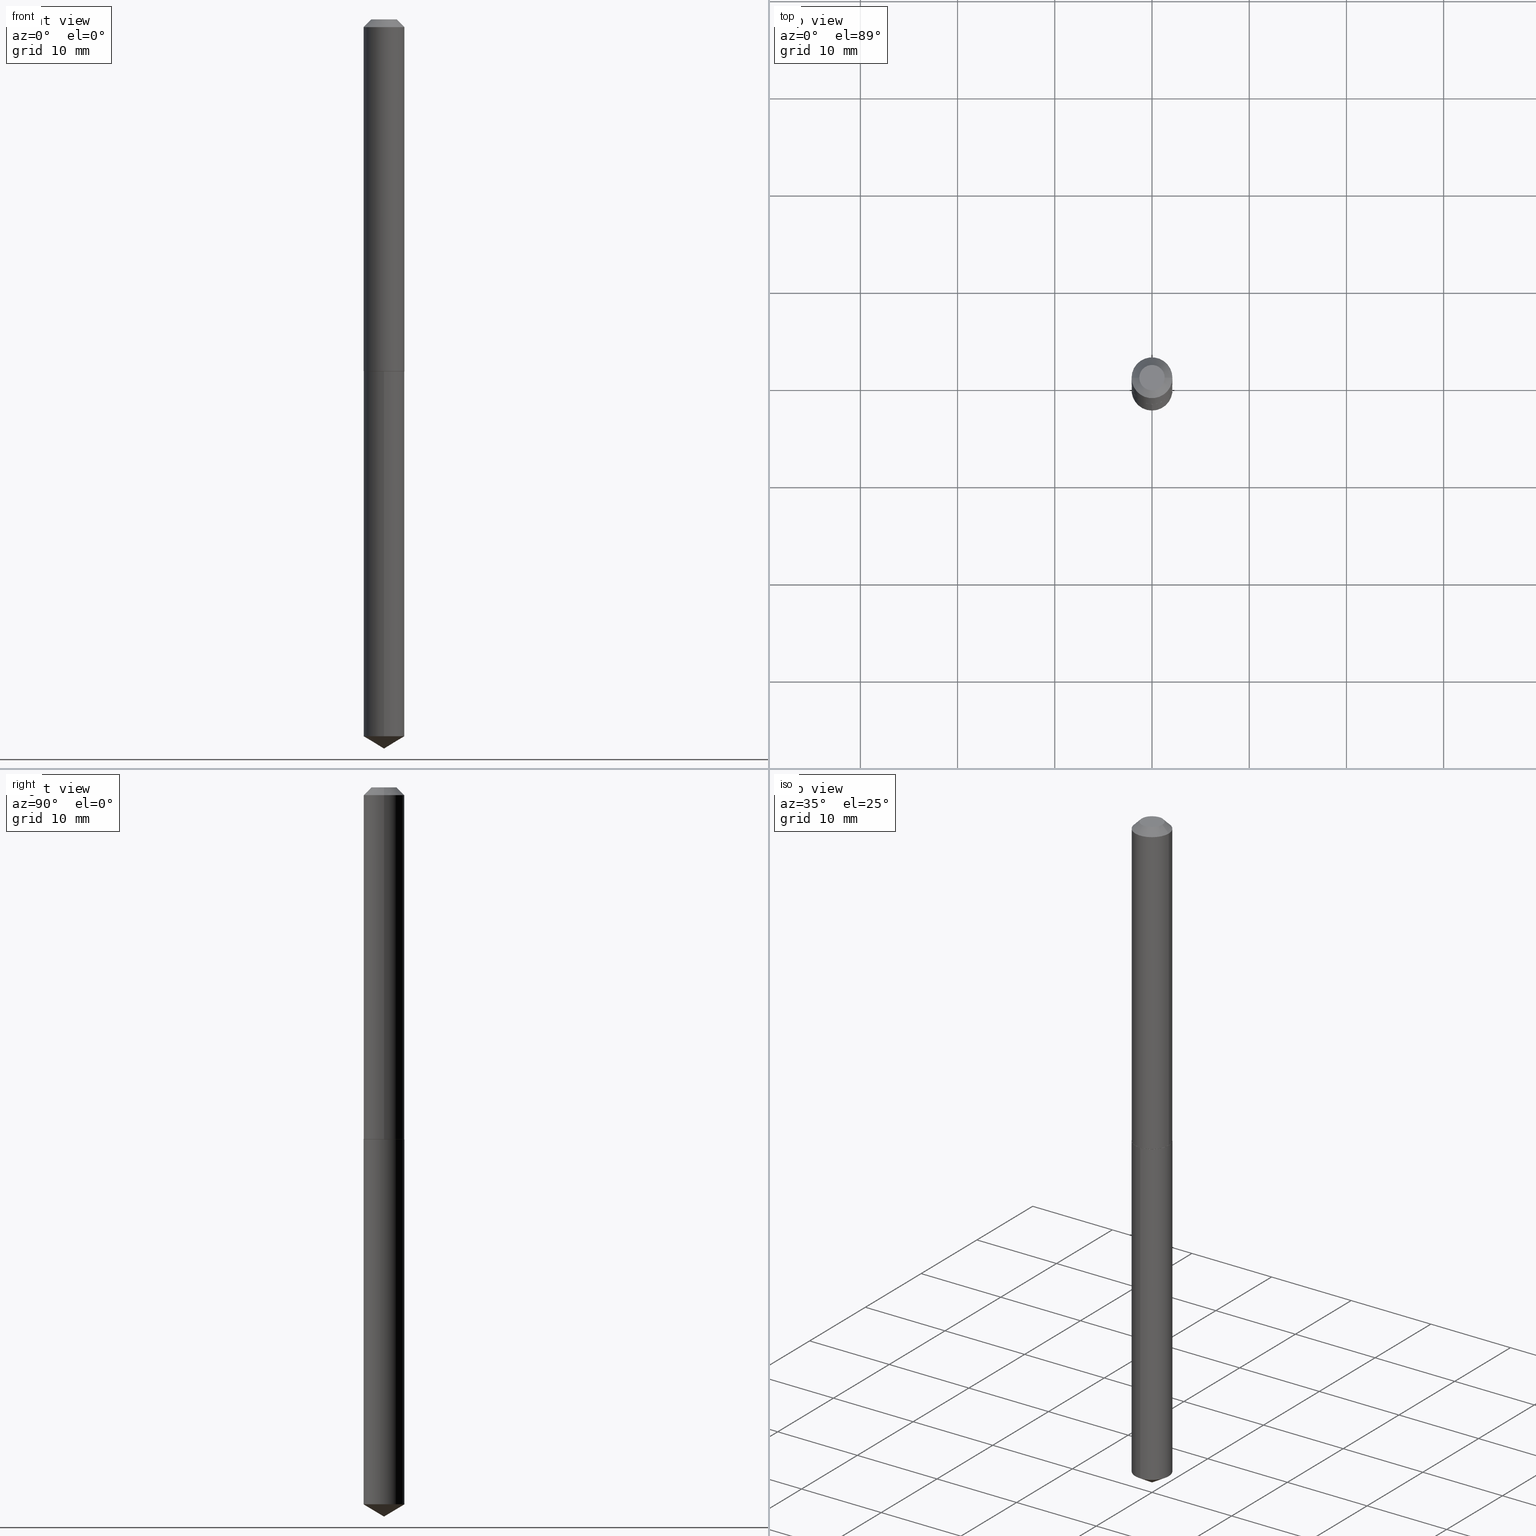
[diagram: canonical four-view strip — front | top / right | iso, engineering-drawing reading convention]
A machine part, canonical four-view strip (front | top / right | iso — engineering-drawing reading convention). The complete STEP part file that produces these views, byte-faithful:
ISO-10303-21;
HEADER;
FILE_DESCRIPTION (( 'STEP AP203' ),
    '1' );
FILE_NAME ('68319.STEP',
    '2024-04-23T13:04:47',
    ( '' ),
    ( '' ),
    'SwSTEP 2.0',
    'SolidWorks 2023',
    '' );
FILE_SCHEMA (( 'CONFIG_CONTROL_DESIGN' ));
ENDSEC;

DATA;
#1 = CARTESIAN_POINT ( 'NONE',  ( 3.485526689455674098E-29, -4.976408352253134499E-15, -1.425299999999999789 ) ) ;
#2 = ADVANCED_FACE ( 'NONE', ( #378 ), #289, .T. ) ;
#3 = DATE_AND_TIME ( #312, #188 ) ;
#4 = ORIENTED_EDGE ( 'NONE', *, *, #171, .T. ) ;
#5 = DATE_AND_TIME ( #34, #48 ) ;
#6 = ORIENTED_EDGE ( 'NONE', *, *, #72, .F. ) ;
#7 = CONICAL_SURFACE ( 'NONE', #279, 0.08269999999999999574, 0.7853981633974450594 ) ;
#8 = DATE_AND_TIME ( #336, #294 ) ;
#9 = ORIENTED_EDGE ( 'NONE', *, *, #180, .T. ) ;
#10 = LINE ( 'NONE', #101, #250 ) ;
#11 = ORIENTED_EDGE ( 'NONE', *, *, #129, .F. ) ;
#12 = VECTOR ( 'NONE', #116, 39.37007874015748143 ) ;
#13 = APPROVAL_DATE_TIME ( #287, #369 ) ;
#14 = AXIS2_PLACEMENT_3D ( 'NONE', #320, #73, #196 ) ;
#15 = ADVANCED_FACE ( 'NONE', ( #49 ), #346, .T. ) ;
#16 = DIRECTION ( 'NONE',  ( -6.982962677686265133E-15, -1.000000000000000000, 3.468864327941516906E-15 ) ) ;
#17 = LINE ( 'NONE', #176, #130 ) ;
#18 = FACE_OUTER_BOUND ( 'NONE', #28, .T. ) ;
#19 = CC_DESIGN_DATE_AND_TIME_ASSIGNMENT ( #8, #64, ( #120 ) ) ;
#20 = DIRECTION ( 'NONE',  ( -2.445410719042540052E-29, 3.491564522937458728E-15, 1.000000000000000000 ) ) ;
#21 = DIRECTION ( 'NONE',  ( -6.982962677686265922E-15, -1.000000000000000000, 3.303322846026920670E-15 ) ) ;
#22 = DIRECTION ( 'NONE',  ( -2.438088387897960049E-29, 3.491481338843145188E-15, 1.000000000000000000 ) ) ;
#23 = ORIENTED_EDGE ( 'NONE', *, *, #174, .T. ) ;
#24 = EDGE_CURVE ( 'NONE', #247, #37, #104, .T. ) ;
#25 = CARTESIAN_POINT ( 'NONE',  ( 7.642090019328600035E-31, -1.091087918388489897E-16, -0.03125000000000020123 ) ) ;
#26 = DIRECTION ( 'NONE',  ( -6.982962677686265133E-15, -1.000000000000000000, 3.468864327941516906E-15 ) ) ;
#27 = LINE ( 'NONE', #297, #86 ) ;
#28 = EDGE_LOOP ( 'NONE', ( #45, #6 ) ) ;
#29 = DIRECTION ( 'NONE',  ( 0.000000000000000000, 0.000000000000000000, 1.000000000000000000 ) ) ;
#30 = EDGE_CURVE ( 'NONE', #70, #146, #10, .T. ) ;
#31 = ORIENTED_EDGE ( 'NONE', *, *, #311, .T. ) ;
#32 = ORIENTED_EDGE ( 'NONE', *, *, #164, .F. ) ;
#33 = VERTEX_POINT ( 'NONE', #228 ) ;
#34 = CALENDAR_DATE ( 2024, 23, 4 ) ;
#35 = DIRECTION ( 'NONE',  ( -2.445410719042540052E-29, 3.491564522937458728E-15, 1.000000000000000000 ) ) ;
#36 = DIRECTION ( 'NONE',  ( -2.445468806185136597E-29, 3.491481338843145583E-15, 1.000000000000000000 ) ) ;
#37 = VERTEX_POINT ( 'NONE', #127 ) ;
#38 = LINE ( 'NONE', #66, #162 ) ;
#39 = VERTEX_POINT ( 'NONE', #254 ) ;
#40 = APPLICATION_CONTEXT ( 'configuration controlled 3d designs of mechanical parts and assemblies' ) ;
#41 = CARTESIAN_POINT ( 'NONE',  ( -0.05144999999999999574, 4.138278256863818177E-16, 2.449293598267681157E-19 ) ) ;
#42 =( GEOMETRIC_REPRESENTATION_CONTEXT ( 3 ) GLOBAL_UNCERTAINTY_ASSIGNED_CONTEXT ( ( #261 ) ) GLOBAL_UNIT_ASSIGNED_CONTEXT ( ( #361, #152, #307 ) ) REPRESENTATION_CONTEXT ( 'NONE', 'WORKASPACE' ) );
#43 = CIRCLE ( 'NONE', #47, 0.08220000000000014795 ) ;
#44 = EDGE_LOOP ( 'NONE', ( #343, #23, #9, #306 ) ) ;
#45 = ORIENTED_EDGE ( 'NONE', *, *, #311, .F. ) ;
#46 = CARTESIAN_POINT ( 'NONE',  ( 7.642090019328600035E-31, -1.091087918388489897E-16, -0.03125000000000020123 ) ) ;
#47 = AXIS2_PLACEMENT_3D ( 'NONE', #386, #78, #326 ) ;
#48 = LOCAL_TIME ( 9, 4, 47.00000000000000000, #277 ) ;
#49 = FACE_OUTER_BOUND ( 'NONE', #44, .T. ) ;
#50 = DIRECTION ( 'NONE',  ( 2.445410719042539772E-29, -3.491564522937458728E-15, -1.000000000000000000 ) ) ;
#51 = CC_DESIGN_PERSON_AND_ORGANIZATION_ASSIGNMENT ( #160, #341, ( #75 ) ) ;
#52 = LINE ( 'NONE', #383, #212 ) ;
#53 = CARTESIAN_POINT ( 'NONE',  ( 3.485526689455674098E-29, -4.976408352253134499E-15, -1.425299999999999789 ) ) ;
#54 = CARTESIAN_POINT ( 'NONE',  ( -5.989671091818665474E-48, 8.551662891793965739E-34, 2.449293598294711584E-19 ) ) ;
#55 = VERTEX_POINT ( 'NONE', #41 ) ;
#56 = AXIS2_PLACEMENT_3D ( 'NONE', #264, #179, #232 ) ;
#57 = LOCAL_TIME ( 9, 4, 47.00000000000000000, #223 ) ;
#58 = DIRECTION ( 'NONE',  ( 2.445468806185136597E-29, -3.491481338843145583E-15, -1.000000000000000000 ) ) ;
#59 = CARTESIAN_POINT ( 'NONE',  ( 3.484303955052581857E-29, -4.974662611583712996E-15, -1.424799999999999844 ) ) ;
#60 = DIRECTION ( 'NONE',  ( -6.982962677686265922E-15, -1.000000000000000000, 3.303322846026920670E-15 ) ) ;
#61 = EDGE_CURVE ( 'NONE', #55, #216, #230, .T. ) ;
#62 = COORDINATED_UNIVERSAL_TIME_OFFSET ( 5, 0, .BEHIND. ) ;
#63 = AXIS2_PLACEMENT_3D ( 'NONE', #248, #220, #159 ) ;
#64 = DATE_TIME_ROLE ( 'creation_date' ) ;
#65 = PERSON_AND_ORGANIZATION ( #273, #193 ) ;
#66 = CARTESIAN_POINT ( 'NONE',  ( 0.08270000000000007900, -5.774910134446548770E-16, 4.032598193583242774E-30 ) ) ;
#67 = DIRECTION ( 'NONE',  ( 1.000000000000000000, -6.982962677686267499E-15, 0.000000000000000000 ) ) ;
#68 = CONICAL_SURFACE ( 'NONE', #56, 0.08269999999999999574, 0.7853981633974450594 ) ;
#69 = CC_DESIGN_APPROVAL ( #108, ( #120 ) ) ;
#70 = VERTEX_POINT ( 'NONE', #266 ) ;
#71 = ORIENTED_EDGE ( 'NONE', *, *, #117, .T. ) ;
#72 = EDGE_CURVE ( 'NONE', #324, #365, #257, .T. ) ;
#73 = DIRECTION ( 'NONE',  ( 2.438088387897960049E-29, -3.491481338843145188E-15, -1.000000000000000000 ) ) ;
#74 = APPLICATION_CONTEXT ( 'configuration controlled 3d designs of mechanical parts and assemblies' ) ;
#75 = SECURITY_CLASSIFICATION ( '', '', #310 ) ;
#76 = ADVANCED_FACE ( 'NONE', ( #148 ), #390, .T. ) ;
#77 = CARTESIAN_POINT ( 'NONE',  ( 0.08270000000000014839, -5.552153625028367676E-15, -1.424799999999999844 ) ) ;
#78 = DIRECTION ( 'NONE',  ( -2.445468806185136597E-29, 3.491481338843145583E-15, 1.000000000000000000 ) ) ;
#79 = AXIS2_PLACEMENT_3D ( 'NONE', #349, #113, #172 ) ;
#80 = LINE ( 'NONE', #379, #124 ) ;
#81 = DIRECTION ( 'NONE',  ( -5.985567269335978356E-15, -0.8571673007021155533, 0.5150380749100487154 ) ) ;
#82 = FACE_OUTER_BOUND ( 'NONE', #314, .T. ) ;
#83 = ORIENTED_EDGE ( 'NONE', *, *, #174, .F. ) ;
#84 = LINE ( 'NONE', #182, #12 ) ;
#85 = DIRECTION ( 'NONE',  ( -2.445468806185136597E-29, 3.491481338843145583E-15, 1.000000000000000000 ) ) ;
#86 = VECTOR ( 'NONE', #238, 39.37007874015748143 ) ;
#87 = PERSON_AND_ORGANIZATION ( #273, #193 ) ;
#88 = ADVANCED_FACE ( 'NONE', ( #270 ), #208, .T. ) ;
#89 = ORIENTED_EDGE ( 'NONE', *, *, #225, .T. ) ;
#90 = PERSON_AND_ORGANIZATION ( #273, #193 ) ;
#91 = PERSON_AND_ORGANIZATION_ROLE ( 'design_owner' ) ;
#92 = ORIENTED_EDGE ( 'NONE', *, *, #374, .T. ) ;
#93 = CIRCLE ( 'NONE', #351, 0.08269999999999999574 ) ;
#94 = PERSON_AND_ORGANIZATION ( #273, #193 ) ;
#95 = EDGE_LOOP ( 'NONE', ( #166, #195 ) ) ;
#96 = APPROVAL_STATUS ( 'not_yet_approved' ) ;
#97 = EDGE_CURVE ( 'NONE', #39, #157, #27, .T. ) ;
#98 = EDGE_LOOP ( 'NONE', ( #332, #92, #350, #209 ) ) ;
#99 = VECTOR ( 'NONE', #342, 39.37007874015748143 ) ;
#100 = ADVANCED_FACE ( 'NONE', ( #107 ), #358, .T. ) ;
#101 = CARTESIAN_POINT ( 'NONE',  ( -5.774910134446193783E-16, -0.08270000000000496398, -1.425299999999999345 ) ) ;
#102 = ORIENTED_EDGE ( 'NONE', *, *, #380, .T. ) ;
#103 = EDGE_CURVE ( 'NONE', #33, #70, #17, .T. ) ;
#104 = CIRCLE ( 'NONE', #283, 0.08269999999999999574 ) ;
#105 = EDGE_LOOP ( 'NONE', ( #89, #71, #125, #201 ) ) ;
#106 = DIRECTION ( 'NONE',  ( -0.7071067811866199593, 7.493145998870616062E-15, 0.7071067811864750752 ) ) ;
#107 = FACE_OUTER_BOUND ( 'NONE', #105, .T. ) ;
#108 = APPROVAL ( #215, 'UNSPECIFIED' ) ;
#109 = PRODUCT ( '68319', '68319', '', ( #370 ) ) ;
#110 = CARTESIAN_POINT ( 'NONE',  ( -0.08220000000000014795, -4.389692996284219796E-15, -1.425299999999999789 ) ) ;
#111 = ORIENTED_EDGE ( 'NONE', *, *, #97, .T. ) ;
#112 = CIRCLE ( 'NONE', #345, 0.08269999999999999574 ) ;
#113 = DIRECTION ( 'NONE',  ( -2.445468806185136597E-29, 3.491481338843145583E-15, 1.000000000000000000 ) ) ;
#114 = DIRECTION ( 'NONE',  ( 1.000000000000000000, -6.982962677686266711E-15, 4.876185480783892329E-29 ) ) ;
#115 = CARTESIAN_POINT ( 'NONE',  ( 0.08220000000000014795, -5.550407884358946961E-15, -1.425299999999999789 ) ) ;
#116 = DIRECTION ( 'NONE',  ( -0.7071067811865452413, 2.468850131082233000E-15, -0.7071067811865497932 ) ) ;
#117 = EDGE_CURVE ( 'NONE', #387, #37, #296, .T. ) ;
#118 = CIRCLE ( 'NONE', #265, 0.05144999999999999574 ) ;
#119 = CALENDAR_DATE ( 2024, 23, 4 ) ;
#120 = PRODUCT_DEFINITION ( 'UNKNOWN', '', #170, #333 ) ;
#121 = CARTESIAN_POINT ( 'NONE',  ( 3.484303955052581857E-29, -4.974662611583712996E-15, -1.424799999999999844 ) ) ;
#122 = LENGTH_MEASURE_WITH_UNIT ( LENGTH_MEASURE( 0.02539999999999999897 ), #245 );
#123 = CLOSED_SHELL ( 'NONE', ( #340, #100, #224, #357, #76, #15, #288, #142 ) ) ;
#124 = VECTOR ( 'NONE', #106, 39.37007874015748143 ) ;
#125 = ORIENTED_EDGE ( 'NONE', *, *, #24, .F. ) ;
#126 = DATE_TIME_ROLE ( 'classification_date' ) ;
#127 = CARTESIAN_POINT ( 'NONE',  ( -0.08269999999999999574, -1.954266859237676647E-15, -0.03125000000000020123 ) ) ;
#128 = SHAPE_DEFINITION_REPRESENTATION ( #382, #281 ) ;
#129 = EDGE_CURVE ( 'NONE', #365, #388, #290, .T. ) ;
#130 = VECTOR ( 'NONE', #81, 39.37007874015748143 ) ;
#131 = CC_DESIGN_PERSON_AND_ORGANIZATION_ASSIGNMENT ( #217, #156, ( #120 ) ) ;
#132 = EDGE_CURVE ( 'NONE', #70, #39, #112, .T. ) ;
#133 = ORIENTED_EDGE ( 'NONE', *, *, #380, .F. ) ;
#134 = CARTESIAN_POINT ( 'NONE',  ( 0.08270000000000014839, -5.552153625028367676E-15, -1.424799999999999844 ) ) ;
#135 = AXIS2_PLACEMENT_3D ( 'NONE', #204, #85, #211 ) ;
#136 = ORIENTED_EDGE ( 'NONE', *, *, #61, .F. ) ;
#137 = CC_DESIGN_APPROVAL ( #369, ( #75 ) ) ;
#138 = CARTESIAN_POINT ( 'NONE',  ( 5.876188424736740181E-16, 0.08269999999999502749, -1.425300000000000011 ) ) ;
#139 = PRODUCT_RELATED_PRODUCT_CATEGORY ( 'detail', '', ( #109 ) ) ;
#140 = DIRECTION ( 'NONE',  ( -2.445468806185136597E-29, 3.491481338843145583E-15, 1.000000000000000000 ) ) ;
#141 = FACE_OUTER_BOUND ( 'NONE', #315, .T. ) ;
#142 = ADVANCED_FACE ( 'NONE', ( #244 ), #213, .F. ) ;
#143 = FACE_OUTER_BOUND ( 'NONE', #214, .T. ) ;
#144 = APPROVAL ( #339, 'UNSPECIFIED' ) ;
#145 = AXIS2_PLACEMENT_3D ( 'NONE', #46, #210, #268 ) ;
#146 = VERTEX_POINT ( 'NONE', #373 ) ;
#147 = PLANE ( 'NONE',  #337 ) ;
#148 = FACE_OUTER_BOUND ( 'NONE', #165, .T. ) ;
#149 = CARTESIAN_POINT ( 'NONE',  ( 0.08269999999999999574, -6.764719762545545521E-16, -0.03125000000000020123 ) ) ;
#150 = DIRECTION ( 'NONE',  ( -2.445410719042540052E-29, 3.491564522937458728E-15, 1.000000000000000000 ) ) ;
#151 = DIRECTION ( 'NONE',  ( 1.000000000000000000, -6.982962677686265922E-15, 0.000000000000000000 ) ) ;
#152 =( NAMED_UNIT ( * ) PLANE_ANGLE_UNIT ( ) SI_UNIT ( $, .RADIAN. ) );
#153 = ORIENTED_EDGE ( 'NONE', *, *, #164, .T. ) ;
#154 = CONICAL_SURFACE ( 'NONE', #242, 0.08270000000000014839, 0.7853981633975507526 ) ;
#155 = DIRECTION ( 'NONE',  ( 1.000000000000000000, 0.000000000000000000, 0.000000000000000000 ) ) ;
#156 = PERSON_AND_ORGANIZATION_ROLE ( 'creator' ) ;
#157 = VERTEX_POINT ( 'NONE', #138 ) ;
#158 = DIRECTION ( 'NONE',  ( 1.000000000000000000, -6.982962677686260400E-15, 0.000000000000000000 ) ) ;
#159 = DIRECTION ( 'NONE',  ( 1.000000000000000000, -6.982962677686267499E-15, 4.876176775795935793E-29 ) ) ;
#160 = PERSON_AND_ORGANIZATION ( #273, #193 ) ;
#161 = ORIENTED_EDGE ( 'NONE', *, *, #103, .T. ) ;
#162 = VECTOR ( 'NONE', #240, 39.37007874015748143 ) ;
#163 = PERSON_AND_ORGANIZATION ( #273, #193 ) ;
#164 = EDGE_CURVE ( 'NONE', #146, #157, #197, .T. ) ;
#165 = EDGE_LOOP ( 'NONE', ( #235, #367, #291, #83 ) ) ;
#166 = ORIENTED_EDGE ( 'NONE', *, *, #61, .T. ) ;
#167 = CC_DESIGN_DATE_AND_TIME_ASSIGNMENT ( #5, #126, ( #75 ) ) ;
#168 = CARTESIAN_POINT ( 'NONE',  ( -5.989671091818665474E-48, 8.551662891793965739E-34, 2.449293598294711584E-19 ) ) ;
#169 = ORIENTED_EDGE ( 'NONE', *, *, #355, .T. ) ;
#170 = PRODUCT_DEFINITION_FORMATION_WITH_SPECIFIED_SOURCE ( 'ANY', '', #109, .NOT_KNOWN. ) ;
#171 = EDGE_CURVE ( 'NONE', #216, #247, #177, .T. ) ;
#172 = DIRECTION ( 'NONE',  ( 1.000000000000000000, -6.982962677686260400E-15, 0.000000000000000000 ) ) ;
#173 = AXIS2_PLACEMENT_3D ( 'NONE', #53, #300, #60 ) ;
#174 = EDGE_CURVE ( 'NONE', #387, #388, #360, .T. ) ;
#175 = CARTESIAN_POINT ( 'NONE',  ( 0.08269999999999999574, -6.865998052835032874E-16, -0.03125000000000020123 ) ) ;
#176 = CARTESIAN_POINT ( 'NONE',  ( 7.220808771188811633E-29, -1.030989172332972791E-14, -2.952799999999999869 ) ) ;
#177 = LINE ( 'NONE', #149, #285 ) ;
#178 = DIRECTION ( 'NONE',  ( 1.000000000000000000, -6.982962677686266711E-15, 4.876185480783892329E-29 ) ) ;
#179 = DIRECTION ( 'NONE',  ( 2.445468806185136597E-29, -3.491481338843145583E-15, -1.000000000000000000 ) ) ;
#180 = EDGE_CURVE ( 'NONE', #388, #247, #38, .T. ) ;
#181 = DIRECTION ( 'NONE',  ( -2.445468806185136597E-29, 3.491481338843145583E-15, 1.000000000000000000 ) ) ;
#182 = CARTESIAN_POINT ( 'NONE',  ( -0.08269999999999999574, 4.683822216058052833E-16, -0.03125000000000020123 ) ) ;
#183 = APPLICATION_PROTOCOL_DEFINITION ( 'international standard', 'config_control_design', 1994, #40 ) ;
#184 = DIRECTION ( 'NONE',  ( 1.000000000000000000, -6.982962677686260400E-15, 0.000000000000000000 ) ) ;
#185 = APPROVAL_ROLE ( '' ) ;
#186 = AXIS2_PLACEMENT_3D ( 'NONE', #348, #202, #317 ) ;
#187 = AXIS2_PLACEMENT_3D ( 'NONE', #237, #150, #356 ) ;
#188 = LOCAL_TIME ( 9, 4, 47.00000000000000000, #274 ) ;
#189 = APPROVAL_ROLE ( '' ) ;
#190 = PERSON_AND_ORGANIZATION_ROLE ( 'design_supplier' ) ;
#191 = APPROVAL_DATE_TIME ( #335, #108 ) ;
#192 = CIRCLE ( 'NONE', #145, 0.08269999999999999574 ) ;
#193 = ORGANIZATION ( 'UNSPECIFIED', 'UNSPECIFIED', '' ) ;
#194 = CALENDAR_DATE ( 2024, 23, 4 ) ;
#195 = ORIENTED_EDGE ( 'NONE', *, *, #246, .T. ) ;
#196 = DIRECTION ( 'NONE',  ( -1.000000000000000000, 6.982962677686265922E-15, -4.876176775795935793E-29 ) ) ;
#197 = CIRCLE ( 'NONE', #251, 0.08269999999999999574 ) ;
#198 = CC_DESIGN_APPROVAL ( #144, ( #170 ) ) ;
#199 = EDGE_LOOP ( 'NONE', ( #278, #111, #32, #325 ) ) ;
#200 = CARTESIAN_POINT ( 'NONE',  ( 3.485526689455674098E-29, -4.976408352253134499E-15, -1.425299999999999789 ) ) ;
#201 = ORIENTED_EDGE ( 'NONE', *, *, #180, .F. ) ;
#202 = DIRECTION ( 'NONE',  ( -2.445410719042540052E-29, 3.491564522937458728E-15, 1.000000000000000000 ) ) ;
#203 = CARTESIAN_POINT ( 'NONE',  ( 0.05144999999999999574, -5.147222991199499197E-16, 2.449293598325265018E-19 ) ) ;
#204 = CARTESIAN_POINT ( 'NONE',  ( 0.000000000000000000, 0.000000000000000000, 0.000000000000000000 ) ) ;
#205 = CONICAL_SURFACE ( 'NONE', #305, 65.52281426576989531, 1.029744258676664304 ) ;
#206 = CARTESIAN_POINT ( 'NONE',  ( -8.905512099793678347E-28, 1.271533970333480474E-13, 36.41727874015747801 ) ) ;
#207 = CARTESIAN_POINT ( 'NONE',  ( 7.642090019328600035E-31, -1.091087918388489897E-16, -0.03125000000000020123 ) ) ;
#208 = CYLINDRICAL_SURFACE ( 'NONE', #173, 0.08269999999999999574 ) ;
#209 = ORIENTED_EDGE ( 'NONE', *, *, #355, .F. ) ;
#210 = DIRECTION ( 'NONE',  ( -2.445468806185136597E-29, 3.491481338843145583E-15, 1.000000000000000000 ) ) ;
#211 = DIRECTION ( 'NONE',  ( 1.000000000000000000, -6.982962677686267499E-15, 4.876176775795935793E-29 ) ) ;
#212 = VECTOR ( 'NONE', #295, 39.37007874015748854 ) ;
#213 = PLANE ( 'NONE',  #14 ) ;
#214 = EDGE_LOOP ( 'NONE', ( #253, #4, #222, #133 ) ) ;
#215 = APPROVAL_STATUS ( 'not_yet_approved' ) ;
#216 = VERTEX_POINT ( 'NONE', #203 ) ;
#217 = PERSON_AND_ORGANIZATION ( #273, #193 ) ;
#218 = ORIENTED_EDGE ( 'NONE', *, *, #132, .F. ) ;
#219 = AXIS2_PLACEMENT_3D ( 'NONE', #59, #327, #184 ) ;
#220 = DIRECTION ( 'NONE',  ( -2.445468806185136597E-29, 3.491481338843145583E-15, 1.000000000000000000 ) ) ;
#221 = PERSON_AND_ORGANIZATION_ROLE ( 'creator' ) ;
#222 = ORIENTED_EDGE ( 'NONE', *, *, #24, .T. ) ;
#223 = COORDINATED_UNIVERSAL_TIME_OFFSET ( 5, 0, .BEHIND. ) ;
#224 = ADVANCED_FACE ( 'NONE', ( #329 ), #154, .T. ) ;
#225 = EDGE_CURVE ( 'NONE', #388, #387, #376, .T. ) ;
#226 = CONICAL_SURFACE ( 'NONE', #302, 65.52281426576989531, 1.029744258676664304 ) ;
#227 = APPROVAL_PERSON_ORGANIZATION ( #90, #108, #185 ) ;
#228 = CARTESIAN_POINT ( 'NONE',  ( 7.220808771188810511E-29, -1.030989172332972633E-14, -2.952799999999999869 ) ) ;
#229 = DIRECTION ( 'NONE',  ( -2.445468806185136597E-29, 3.491481338843145583E-15, 1.000000000000000000 ) ) ;
#230 = CIRCLE ( 'NONE', #375, 0.05144999999999999574 ) ;
#231 = ADVANCED_FACE ( 'NONE', ( #141 ), #226, .T. ) ;
#232 = DIRECTION ( 'NONE',  ( -1.000000000000000000, 6.982962677686267499E-15, 0.000000000000000000 ) ) ;
#233 = CARTESIAN_POINT ( 'NONE',  ( 3.484303955052581857E-29, -4.974662611583712996E-15, -1.424799999999999844 ) ) ;
#234 = CARTESIAN_POINT ( 'NONE',  ( 3.485526689455674098E-29, -4.976408352253134499E-15, -1.425299999999999789 ) ) ;
#235 = ORIENTED_EDGE ( 'NONE', *, *, #271, .F. ) ;
#236 = ADVANCED_FACE ( 'NONE', ( #82 ), #147, .F. ) ;
#237 = CARTESIAN_POINT ( 'NONE',  ( 7.099376235223778941E-29, -1.013627322361426597E-14, -2.903108826806421572 ) ) ;
#238 = DIRECTION ( 'NONE',  ( -2.445410719042540333E-29, 3.491564522937458728E-15, 1.000000000000000000 ) ) ;
#239 = MANIFOLD_SOLID_BREP ( 'Body-Move/Copy2[2]', #123 ) ;
#240 = DIRECTION ( 'NONE',  ( -2.445468806185136877E-29, 3.491481338843145188E-15, 1.000000000000000000 ) ) ;
#241 = CARTESIAN_POINT ( 'NONE',  ( -0.08270000000000014839, -4.387043769110109384E-15, -1.424799999999999844 ) ) ;
#242 = AXIS2_PLACEMENT_3D ( 'NONE', #233, #304, #293 ) ;
#243 = AXIS2_PLACEMENT_3D ( 'NONE', #280, #29, #155 ) ;
#244 = FACE_OUTER_BOUND ( 'NONE', #95, .T. ) ;
#245 =( LENGTH_UNIT ( ) NAMED_UNIT ( * ) SI_UNIT ( $, .METRE. ) );
#246 = EDGE_CURVE ( 'NONE', #216, #55, #118, .T. ) ;
#247 = VERTEX_POINT ( 'NONE', #175 ) ;
#248 = CARTESIAN_POINT ( 'NONE',  ( 0.000000000000000000, 0.000000000000000000, 0.000000000000000000 ) ) ;
#249 = ORIENTED_EDGE ( 'NONE', *, *, #374, .F. ) ;
#250 = VECTOR ( 'NONE', #316, 39.37007874015748143 ) ;
#251 = AXIS2_PLACEMENT_3D ( 'NONE', #284, #286, #21 ) ;
#252 = APPLICATION_PROTOCOL_DEFINITION ( 'international standard', 'config_control_design', 1994, #74 ) ;
#253 = ORIENTED_EDGE ( 'NONE', *, *, #246, .F. ) ;
#254 = CARTESIAN_POINT ( 'NONE',  ( 5.876188424736738209E-16, 0.08269999999998987883, -2.903108826806422016 ) ) ;
#255 = ORIENTED_EDGE ( 'NONE', *, *, #299, .F. ) ;
#256 = ORIENTED_EDGE ( 'NONE', *, *, #267, .T. ) ;
#257 = CIRCLE ( 'NONE', #272, 0.08220000000000014795 ) ;
#258 = APPROVAL_PERSON_ORGANIZATION ( #87, #144, #189 ) ;
#259 = ORIENTED_EDGE ( 'NONE', *, *, #225, .F. ) ;
#260 = CARTESIAN_POINT ( 'NONE',  ( -8.905512099793678347E-28, 1.271533970333480474E-13, 36.41727874015747801 ) ) ;
#261 = UNCERTAINTY_MEASURE_WITH_UNIT (LENGTH_MEASURE( 1.000000000000000082E-05 ), #361, 'distance_accuracy_value', 'NONE');
#262 = PLANE ( 'NONE',  #292 ) ;
#263 = CC_DESIGN_PERSON_AND_ORGANIZATION_ASSIGNMENT ( #94, #221, ( #170 ) ) ;
#264 = CARTESIAN_POINT ( 'NONE',  ( 7.642090019328600035E-31, -1.091087918388489897E-16, -0.03125000000000020123 ) ) ;
#265 = AXIS2_PLACEMENT_3D ( 'NONE', #54, #140, #178 ) ;
#266 = CARTESIAN_POINT ( 'NONE',  ( -5.774910134445832879E-16, -0.08270000000001015428, -2.903108826806421128 ) ) ;
#267 = EDGE_CURVE ( 'NONE', #37, #247, #192, .T. ) ;
#268 = DIRECTION ( 'NONE',  ( 1.000000000000000000, -6.982962677686267499E-15, 0.000000000000000000 ) ) ;
#269 = DIRECTION ( 'NONE',  ( -1.000000000000000000, 6.982962677686267499E-15, 0.000000000000000000 ) ) ;
#270 = FACE_OUTER_BOUND ( 'NONE', #199, .T. ) ;
#271 = EDGE_CURVE ( 'NONE', #324, #387, #80, .T. ) ;
#272 = AXIS2_PLACEMENT_3D ( 'NONE', #1, #181, #151 ) ;
#273 = PERSON ( 'UNSPECIFIED', 'UNSPECIFIED', 'UNSPECIFIED', ('UNSPECIFIED'), ('UNSPECIFIED'), ('UNSPECIFIED') ) ;
#274 = COORDINATED_UNIVERSAL_TIME_OFFSET ( 5, 0, .BEHIND. ) ;
#275 = EDGE_LOOP ( 'NONE', ( #31, #282, #259, #11 ) ) ;
#276 = DIRECTION ( 'NONE',  ( -6.982962677686265922E-15, -1.000000000000000000, 6.606645692053841341E-15 ) ) ;
#277 = COORDINATED_UNIVERSAL_TIME_OFFSET ( 5, 0, .BEHIND. ) ;
#278 = ORIENTED_EDGE ( 'NONE', *, *, #132, .T. ) ;
#279 = AXIS2_PLACEMENT_3D ( 'NONE', #207, #58, #269 ) ;
#280 = CARTESIAN_POINT ( 'NONE',  ( 0.000000000000000000, 0.000000000000000000, 0.000000000000000000 ) ) ;
#281 = ADVANCED_BREP_SHAPE_REPRESENTATION ( '68319', ( #372, #239, #243 ), #42 ) ;
#282 = ORIENTED_EDGE ( 'NONE', *, *, #271, .T. ) ;
#283 = AXIS2_PLACEMENT_3D ( 'NONE', #25, #36, #67 ) ;
#284 = CARTESIAN_POINT ( 'NONE',  ( 3.485526689455674098E-29, -4.976408352253134499E-15, -1.425299999999999789 ) ) ;
#285 = VECTOR ( 'NONE', #308, 39.37007874015748143 ) ;
#286 = DIRECTION ( 'NONE',  ( -2.445410719042540052E-29, 3.491564522937458728E-15, 1.000000000000000000 ) ) ;
#287 = DATE_AND_TIME ( #194, #57 ) ;
#288 = ADVANCED_FACE ( 'NONE', ( #352 ), #68, .T. ) ;
#289 = CYLINDRICAL_SURFACE ( 'NONE', #186, 0.08269999999999999574 ) ;
#290 = LINE ( 'NONE', #134, #99 ) ;
#291 = ORIENTED_EDGE ( 'NONE', *, *, #129, .T. ) ;
#292 = AXIS2_PLACEMENT_3D ( 'NONE', #301, #22, #385 ) ;
#293 = DIRECTION ( 'NONE',  ( 1.000000000000000000, -6.982962677686260400E-15, 0.000000000000000000 ) ) ;
#294 = LOCAL_TIME ( 9, 4, 47.00000000000000000, #62 ) ;
#295 = DIRECTION ( 'NONE',  ( 6.090539988449815512E-15, 0.8571673007021192170, 0.5150380749100427202 ) ) ;
#296 = LINE ( 'NONE', #353, #321 ) ;
#297 = CARTESIAN_POINT ( 'NONE',  ( 5.876188424736375333E-16, 0.08269999999999502749, -1.425300000000000011 ) ) ;
#298 = FACE_OUTER_BOUND ( 'NONE', #330, .T. ) ;
#299 = EDGE_CURVE ( 'NONE', #33, #39, #52, .T. ) ;
#300 = DIRECTION ( 'NONE',  ( -2.445410719042540052E-29, 3.491564522937458728E-15, 1.000000000000000000 ) ) ;
#301 = CARTESIAN_POINT ( 'NONE',  ( 3.485526689455674098E-29, -4.976408352253134499E-15, -1.425299999999999789 ) ) ;
#302 = AXIS2_PLACEMENT_3D ( 'NONE', #260, #322, #16 ) ;
#303 = APPROVAL_PERSON_ORGANIZATION ( #163, #369, #359 ) ;
#304 = DIRECTION ( 'NONE',  ( -2.445468806185136597E-29, 3.491481338843145583E-15, 1.000000000000000000 ) ) ;
#305 = AXIS2_PLACEMENT_3D ( 'NONE', #206, #20, #26 ) ;
#306 = ORIENTED_EDGE ( 'NONE', *, *, #267, .F. ) ;
#307 =( NAMED_UNIT ( * ) SI_UNIT ( $, .STERADIAN. ) SOLID_ANGLE_UNIT ( ) );
#308 = DIRECTION ( 'NONE',  ( 0.7071067811865452413, -7.319954787623248157E-15, -0.7071067811865497932 ) ) ;
#309 = CARTESIAN_POINT ( 'NONE',  ( 7.099376235223778941E-29, -1.013627322361426597E-14, -2.903108826806421572 ) ) ;
#310 = SECURITY_CLASSIFICATION_LEVEL ( 'unclassified' ) ;
#311 = EDGE_CURVE ( 'NONE', #365, #324, #43, .T. ) ;
#312 = CALENDAR_DATE ( 2024, 23, 4 ) ;
#313 = ADVANCED_FACE ( 'NONE', ( #298 ), #205, .T. ) ;
#314 = EDGE_LOOP ( 'NONE', ( #153, #169 ) ) ;
#315 = EDGE_LOOP ( 'NONE', ( #377, #319, #218 ) ) ;
#316 = DIRECTION ( 'NONE',  ( -2.445410719042540333E-29, 3.491564522937458728E-15, 1.000000000000000000 ) ) ;
#317 = DIRECTION ( 'NONE',  ( -6.982962677686265922E-15, -1.000000000000000000, 3.303322846026920670E-15 ) ) ;
#318 = DIRECTION ( 'NONE',  ( -2.445468806185136877E-29, 3.491481338843145188E-15, 1.000000000000000000 ) ) ;
#319 = ORIENTED_EDGE ( 'NONE', *, *, #299, .T. ) ;
#320 = CARTESIAN_POINT ( 'NONE',  ( -2.994835545909332737E-48, 4.275831445896982869E-34, 1.224646799147355792E-19 ) ) ;
#321 = VECTOR ( 'NONE', #318, 39.37007874015748143 ) ;
#322 = DIRECTION ( 'NONE',  ( -2.445410719042540052E-29, 3.491564522937458728E-15, 1.000000000000000000 ) ) ;
#323 = CC_DESIGN_SECURITY_CLASSIFICATION ( #75, ( #170 ) ) ;
#324 = VERTEX_POINT ( 'NONE', #110 ) ;
#325 = ORIENTED_EDGE ( 'NONE', *, *, #30, .F. ) ;
#326 = DIRECTION ( 'NONE',  ( 1.000000000000000000, -6.982962677686265922E-15, 0.000000000000000000 ) ) ;
#327 = DIRECTION ( 'NONE',  ( -2.445468806185136597E-29, 3.491481338843145583E-15, 1.000000000000000000 ) ) ;
#328 = DIRECTION ( 'NONE',  ( -6.982962677686265922E-15, -1.000000000000000000, 3.303322846026920670E-15 ) ) ;
#329 = FACE_OUTER_BOUND ( 'NONE', #275, .T. ) ;
#330 = EDGE_LOOP ( 'NONE', ( #255, #161, #249 ) ) ;
#331 = CC_DESIGN_PERSON_AND_ORGANIZATION_ASSIGNMENT ( #363, #91, ( #109 ) ) ;
#332 = ORIENTED_EDGE ( 'NONE', *, *, #97, .F. ) ;
#333 = DESIGN_CONTEXT ( 'detailed design', #40, 'design' ) ;
#334 = EDGE_LOOP ( 'NONE', ( #384, #136, #102, #256 ) ) ;
#335 = DATE_AND_TIME ( #119, #338 ) ;
#336 = CALENDAR_DATE ( 2024, 23, 4 ) ;
#337 = AXIS2_PLACEMENT_3D ( 'NONE', #200, #50, #381 ) ;
#338 = LOCAL_TIME ( 9, 4, 47.00000000000000000, #389 ) ;
#339 = APPROVAL_STATUS ( 'not_yet_approved' ) ;
#340 = ADVANCED_FACE ( 'NONE', ( #143 ), #7, .T. ) ;
#341 = PERSON_AND_ORGANIZATION_ROLE ( 'classification_officer' ) ;
#342 = DIRECTION ( 'NONE',  ( 0.7071067811866199593, -2.468850131083015945E-15, 0.7071067811864750752 ) ) ;
#343 = ORIENTED_EDGE ( 'NONE', *, *, #117, .F. ) ;
#344 = CLOSED_SHELL ( 'NONE', ( #88, #231, #313, #2, #236 ) ) ;
#345 = AXIS2_PLACEMENT_3D ( 'NONE', #309, #35, #276 ) ;
#346 = CYLINDRICAL_SURFACE ( 'NONE', #63, 0.08270000000000007900 ) ;
#347 = DIMENSIONAL_EXPONENTS ( 1.000000000000000000, 0.000000000000000000, 0.000000000000000000, 0.000000000000000000, 0.000000000000000000, 0.000000000000000000, 0.000000000000000000 ) ;
#348 = CARTESIAN_POINT ( 'NONE',  ( 3.485526689455674098E-29, -4.976408352253134499E-15, -1.425299999999999789 ) ) ;
#349 = CARTESIAN_POINT ( 'NONE',  ( 3.484303955052581857E-29, -4.974662611583712996E-15, -1.424799999999999844 ) ) ;
#350 = ORIENTED_EDGE ( 'NONE', *, *, #30, .T. ) ;
#351 = AXIS2_PLACEMENT_3D ( 'NONE', #234, #354, #328 ) ;
#352 = FACE_OUTER_BOUND ( 'NONE', #334, .T. ) ;
#353 = CARTESIAN_POINT ( 'NONE',  ( -0.08270000000000007900, 5.876188424736034151E-16, -4.067959319640811108E-30 ) ) ;
#354 = DIRECTION ( 'NONE',  ( -2.445410719042540052E-29, 3.491564522937458728E-15, 1.000000000000000000 ) ) ;
#355 = EDGE_CURVE ( 'NONE', #157, #146, #93, .T. ) ;
#356 = DIRECTION ( 'NONE',  ( -6.982962677686265922E-15, -1.000000000000000000, 6.606645692053841341E-15 ) ) ;
#357 = ADVANCED_FACE ( 'NONE', ( #18 ), #262, .F. ) ;
#358 = CYLINDRICAL_SURFACE ( 'NONE', #135, 0.08270000000000007900 ) ;
#359 = APPROVAL_ROLE ( '' ) ;
#360 = CIRCLE ( 'NONE', #371, 0.08270000000000014839 ) ;
#361 =( CONVERSION_BASED_UNIT ( 'INCH', #122 ) LENGTH_UNIT ( ) NAMED_UNIT ( #347 ) );
#362 = CC_DESIGN_PERSON_AND_ORGANIZATION_ASSIGNMENT ( #65, #190, ( #170 ) ) ;
#363 = PERSON_AND_ORGANIZATION ( #273, #193 ) ;
#364 = DIRECTION ( 'NONE',  ( -2.445468806185136597E-29, 3.491481338843145583E-15, 1.000000000000000000 ) ) ;
#365 = VERTEX_POINT ( 'NONE', #115 ) ;
#366 = APPROVAL_DATE_TIME ( #3, #144 ) ;
#367 = ORIENTED_EDGE ( 'NONE', *, *, #72, .T. ) ;
#368 = CIRCLE ( 'NONE', #187, 0.08269999999999999574 ) ;
#369 = APPROVAL ( #96, 'UNSPECIFIED' ) ;
#370 = MECHANICAL_CONTEXT ( 'NONE', #74, 'mechanical' ) ;
#371 = AXIS2_PLACEMENT_3D ( 'NONE', #121, #364, #158 ) ;
#372 = MANIFOLD_SOLID_BREP ( 'Body-Move/Copy2[1]', #344 ) ;
#373 = CARTESIAN_POINT ( 'NONE',  ( -5.774910134446193783E-16, -0.08270000000000496398, -1.425299999999999345 ) ) ;
#374 = EDGE_CURVE ( 'NONE', #39, #70, #368, .T. ) ;
#375 = AXIS2_PLACEMENT_3D ( 'NONE', #168, #229, #114 ) ;
#376 = CIRCLE ( 'NONE', #79, 0.08270000000000014839 ) ;
#377 = ORIENTED_EDGE ( 'NONE', *, *, #103, .F. ) ;
#378 = FACE_OUTER_BOUND ( 'NONE', #98, .T. ) ;
#379 = CARTESIAN_POINT ( 'NONE',  ( -0.08270000000000014839, -4.387043769110109384E-15, -1.424799999999999844 ) ) ;
#380 = EDGE_CURVE ( 'NONE', #55, #37, #84, .T. ) ;
#381 = DIRECTION ( 'NONE',  ( 6.982962677686265922E-15, 1.000000000000000000, -3.491564522937458728E-15 ) ) ;
#382 = PRODUCT_DEFINITION_SHAPE ( 'NONE', 'NONE',  #120 ) ;
#383 = CARTESIAN_POINT ( 'NONE',  ( 7.220975806366782745E-29, -1.030965459875047722E-14, -2.952799999999999869 ) ) ;
#384 = ORIENTED_EDGE ( 'NONE', *, *, #171, .F. ) ;
#385 = DIRECTION ( 'NONE',  ( 1.000000000000000000, -6.982962677686265922E-15, 4.876176775795935793E-29 ) ) ;
#386 = CARTESIAN_POINT ( 'NONE',  ( 3.485526689455674098E-29, -4.976408352253134499E-15, -1.425299999999999789 ) ) ;
#387 = VERTEX_POINT ( 'NONE', #241 ) ;
#388 = VERTEX_POINT ( 'NONE', #77 ) ;
#389 = COORDINATED_UNIVERSAL_TIME_OFFSET ( 5, 0, .BEHIND. ) ;
#390 = CONICAL_SURFACE ( 'NONE', #219, 0.08270000000000014839, 0.7853981633975507526 ) ;
ENDSEC;
END-ISO-10303-21;
